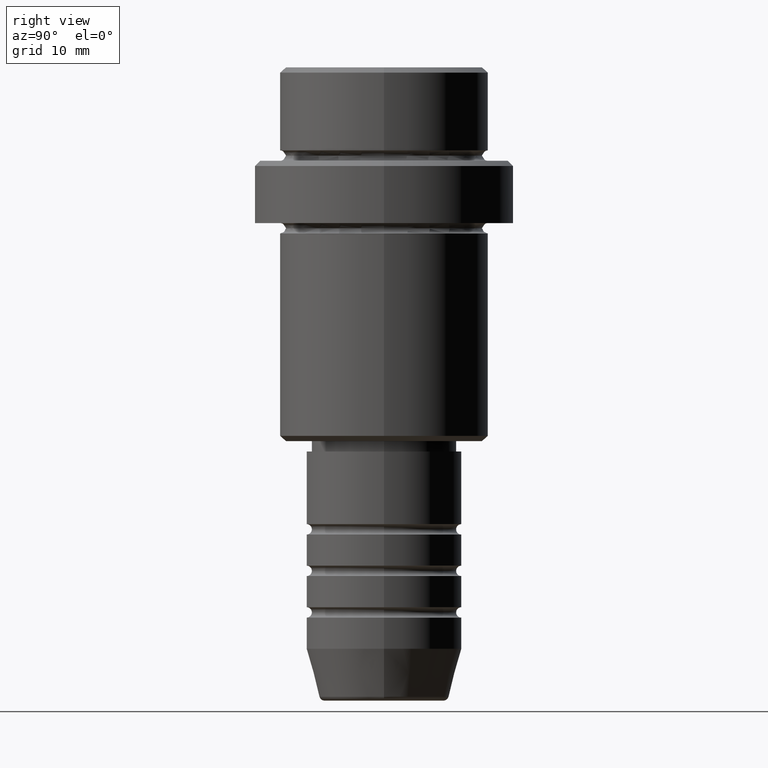
[diagram: clean part render]
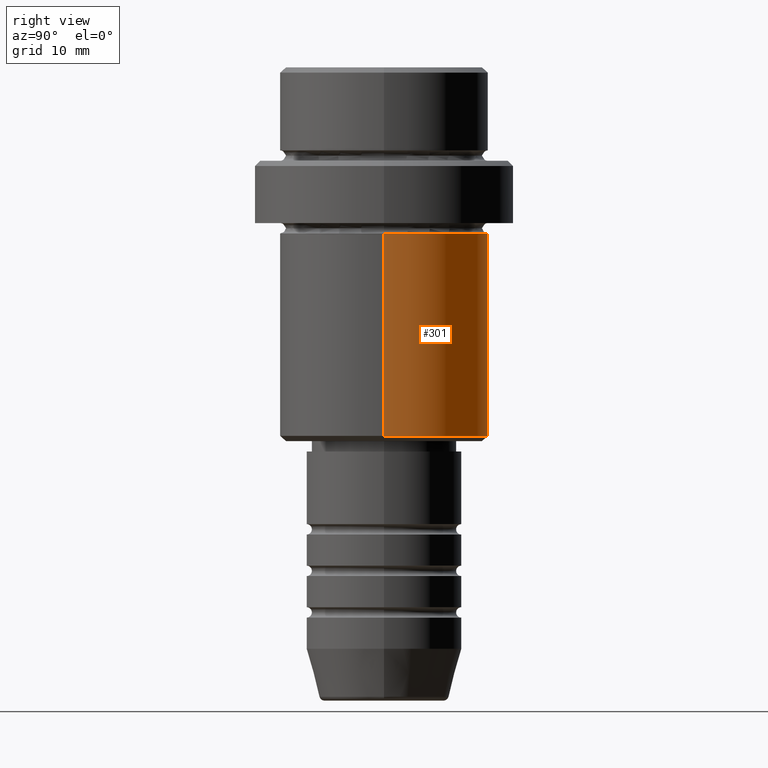
[diagram: same view with one face highlighted and labeled with its STEP entity id]
A machine part, right view. The second image highlights one B-rep face of the part: STEP entity #301.
In plain terms, the highlighted cylindrical surface (partial cylindrical patch) has radius 10 mm, axis along (-0, -0, 1).
Its self-contained STEP definition (entity closure, byte-faithful):
#57 = CARTESIAN_POINT ( 'NONE',  ( 10.00000000000000000, 0.000000000000000000, 0.000000000000000000 ) ) ;
#182 = CIRCLE ( 'NONE', #1035, 10.00000000000000000 ) ;
#265 = DIRECTION ( 'NONE',  ( -1.000000000000000000, 0.000000000000000000, 0.000000000000000000 ) ) ;
#288 = ORIENTED_EDGE ( 'NONE', *, *, #760, .T. ) ;
#301 = ADVANCED_FACE ( 'NONE', ( #607 ), #1046, .T. ) ;
#336 = CARTESIAN_POINT ( 'NONE',  ( -10.00000000000000000, 1.224646799147353256E-15, -35.50000000000001421 ) ) ;
#341 = AXIS2_PLACEMENT_3D ( 'NONE', #1051, #1141, #265 ) ;
#389 = EDGE_CURVE ( 'NONE', #637, #1193, #1036, .T. ) ;
#486 = DIRECTION ( 'NONE',  ( -0.000000000000000000, -0.000000000000000000, 1.000000000000000000 ) ) ;
#492 = CARTESIAN_POINT ( 'NONE',  ( 0.000000000000000000, 0.000000000000000000, 0.000000000000000000 ) ) ;
#510 = ORIENTED_EDGE ( 'NONE', *, *, #1387, .T. ) ;
#607 = FACE_OUTER_BOUND ( 'NONE', #1372, .T. ) ;
#623 = VERTEX_POINT ( 'NONE', #1027 ) ;
#625 = LINE ( 'NONE', #1308, #772 ) ;
#637 = VERTEX_POINT ( 'NONE', #805 ) ;
#760 = EDGE_CURVE ( 'NONE', #637, #1067, #1407, .T. ) ;
#772 = VECTOR ( 'NONE', #1062, 1000.000000000000000 ) ;
#805 = CARTESIAN_POINT ( 'NONE',  ( 10.00000000000000000, 0.000000000000000000, -35.50000000000001421 ) ) ;
#808 = ORIENTED_EDGE ( 'NONE', *, *, #389, .F. ) ;
#844 = ORIENTED_EDGE ( 'NONE', *, *, #1095, .F. ) ;
#916 = DIRECTION ( 'NONE',  ( -0.000000000000000000, -0.000000000000000000, 1.000000000000000000 ) ) ;
#927 = CARTESIAN_POINT ( 'NONE',  ( 10.00000000000000000, 0.000000000000000000, -16.00000000000000000 ) ) ;
#942 = DIRECTION ( 'NONE',  ( -0.000000000000000000, -0.000000000000000000, 1.000000000000000000 ) ) ;
#976 = AXIS2_PLACEMENT_3D ( 'NONE', #492, #942, #1052 ) ;
#1027 = CARTESIAN_POINT ( 'NONE',  ( -10.00000000000000000, 1.224646799147353256E-15, -16.00000000000000000 ) ) ;
#1035 = AXIS2_PLACEMENT_3D ( 'NONE', #1208, #916, #1107 ) ;
#1036 = LINE ( 'NONE', #57, #1182 ) ;
#1046 = CYLINDRICAL_SURFACE ( 'NONE', #976, 10.00000000000000000 ) ;
#1051 = CARTESIAN_POINT ( 'NONE',  ( 0.000000000000000000, 0.000000000000000000, -35.50000000000001421 ) ) ;
#1052 = DIRECTION ( 'NONE',  ( 1.000000000000000000, 0.000000000000000000, 0.000000000000000000 ) ) ;
#1062 = DIRECTION ( 'NONE',  ( -0.000000000000000000, -0.000000000000000000, 1.000000000000000000 ) ) ;
#1067 = VERTEX_POINT ( 'NONE', #336 ) ;
#1095 = EDGE_CURVE ( 'NONE', #1193, #623, #182, .T. ) ;
#1107 = DIRECTION ( 'NONE',  ( 1.000000000000000000, 0.000000000000000000, 0.000000000000000000 ) ) ;
#1141 = DIRECTION ( 'NONE',  ( -0.000000000000000000, -0.000000000000000000, 1.000000000000000000 ) ) ;
#1182 = VECTOR ( 'NONE', #486, 1000.000000000000000 ) ;
#1193 = VERTEX_POINT ( 'NONE', #927 ) ;
#1208 = CARTESIAN_POINT ( 'NONE',  ( 0.000000000000000000, 0.000000000000000000, -16.00000000000000000 ) ) ;
#1308 = CARTESIAN_POINT ( 'NONE',  ( -10.00000000000000000, 1.224646799147353256E-15, 0.000000000000000000 ) ) ;
#1372 = EDGE_LOOP ( 'NONE', ( #288, #510, #844, #808 ) ) ;
#1387 = EDGE_CURVE ( 'NONE', #1067, #623, #625, .T. ) ;
#1407 = CIRCLE ( 'NONE', #341, 10.00000000000000000 ) ;